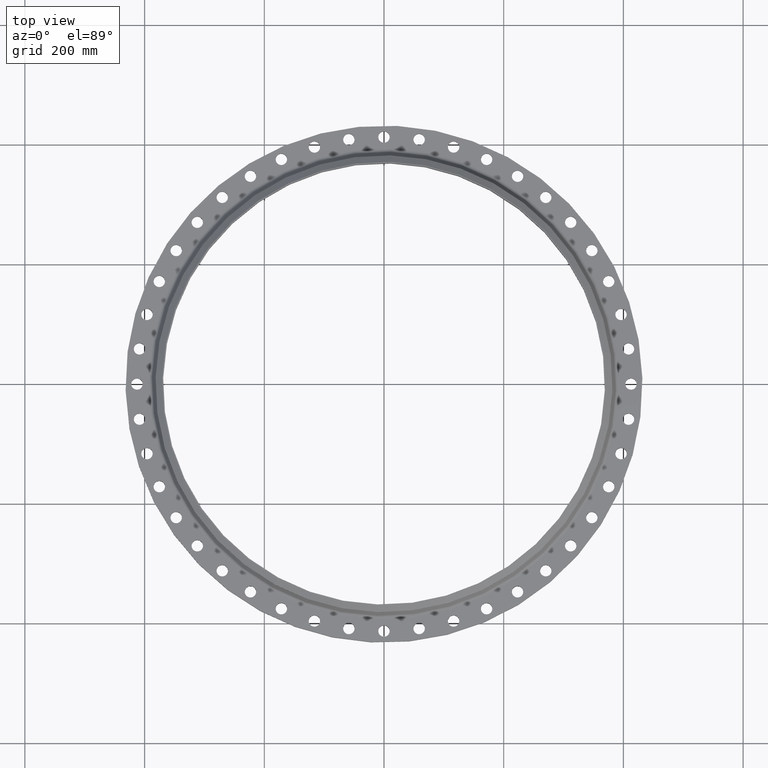
[diagram: clean part render]
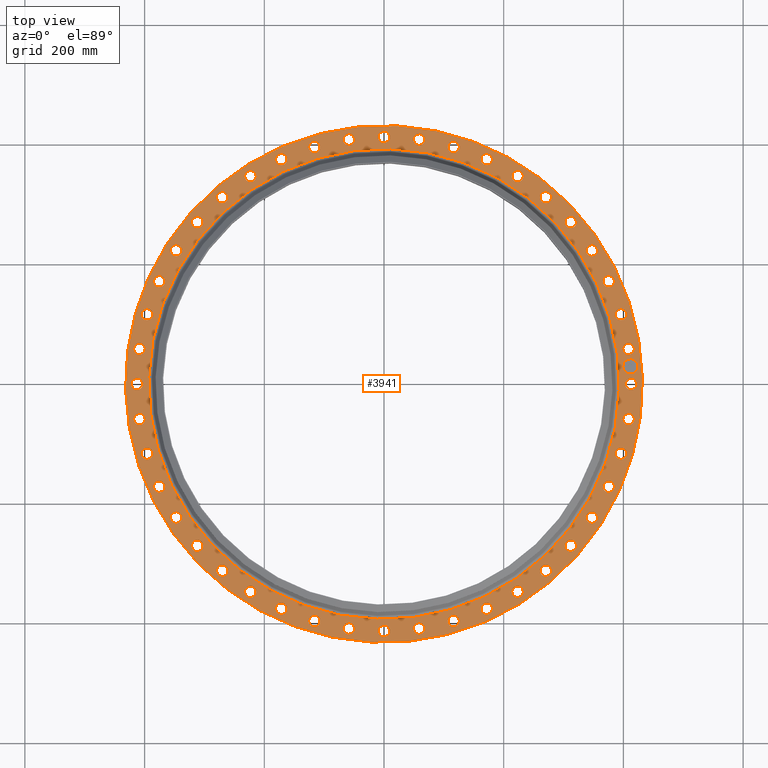
[diagram: same view with one face highlighted and labeled with its STEP entity id]
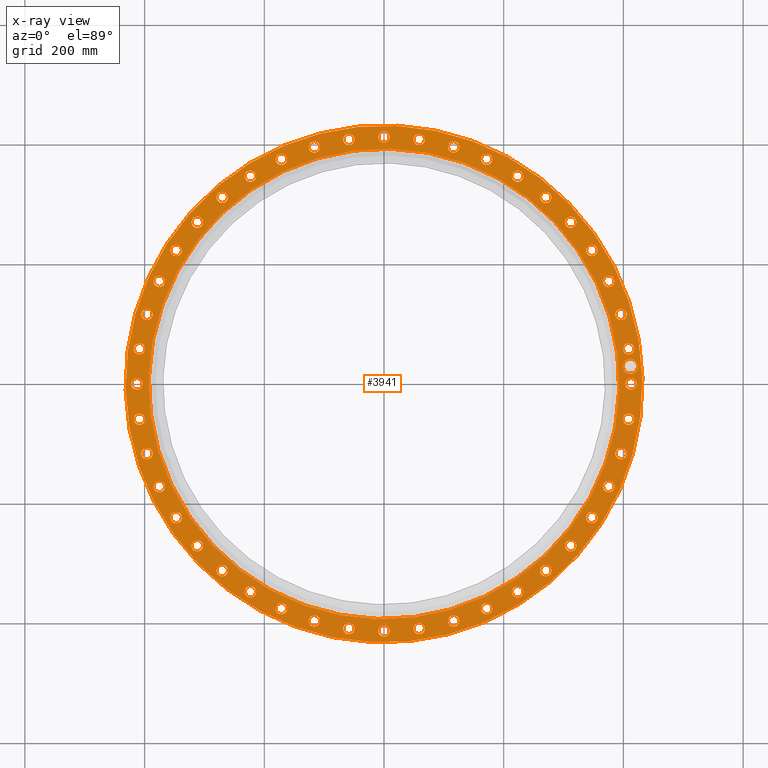
[diagram: x-ray of the same camera — body ghosted, the highlighted face saturated]
A machine part, top view. The second image highlights one B-rep face of the part: STEP entity #3941.
The next image is the same camera in x-ray: the body ghosted, the highlighted face saturated — about 0% of this face is hidden behind the body in this view.
In plain terms, the highlighted planar face has unit normal (0, 0, -1).
Its self-contained STEP definition (entity closure, byte-faithful):
#65=AXIS2_PLACEMENT_3D('Circle Axis2P3D',#63,#64,$) ;
#89=AXIS2_PLACEMENT_3D('Circle Axis2P3D',#87,#88,$) ;
#123=AXIS2_PLACEMENT_3D('Circle Axis2P3D',#121,#122,$) ;
#147=AXIS2_PLACEMENT_3D('Circle Axis2P3D',#145,#146,$) ;
#164=AXIS2_PLACEMENT_3D('Circle Axis2P3D',#162,#163,$) ;
#199=AXIS2_PLACEMENT_3D('Circle Axis2P3D',#197,#198,$) ;
#1863=AXIS2_PLACEMENT_3D('Circle Axis2P3D',#1861,#1862,$) ;
#1875=AXIS2_PLACEMENT_3D('Circle Axis2P3D',#1873,#1874,$) ;
#1907=AXIS2_PLACEMENT_3D('Circle Axis2P3D',#1905,#1906,$) ;
#1919=AXIS2_PLACEMENT_3D('Circle Axis2P3D',#1917,#1918,$) ;
#1951=AXIS2_PLACEMENT_3D('Circle Axis2P3D',#1949,#1950,$) ;
#1963=AXIS2_PLACEMENT_3D('Circle Axis2P3D',#1961,#1962,$) ;
#1995=AXIS2_PLACEMENT_3D('Circle Axis2P3D',#1993,#1994,$) ;
#2007=AXIS2_PLACEMENT_3D('Circle Axis2P3D',#2005,#2006,$) ;
#2039=AXIS2_PLACEMENT_3D('Circle Axis2P3D',#2037,#2038,$) ;
#2051=AXIS2_PLACEMENT_3D('Circle Axis2P3D',#2049,#2050,$) ;
#2083=AXIS2_PLACEMENT_3D('Circle Axis2P3D',#2081,#2082,$) ;
#2095=AXIS2_PLACEMENT_3D('Circle Axis2P3D',#2093,#2094,$) ;
#2127=AXIS2_PLACEMENT_3D('Circle Axis2P3D',#2125,#2126,$) ;
#2139=AXIS2_PLACEMENT_3D('Circle Axis2P3D',#2137,#2138,$) ;
#2171=AXIS2_PLACEMENT_3D('Circle Axis2P3D',#2169,#2170,$) ;
#2183=AXIS2_PLACEMENT_3D('Circle Axis2P3D',#2181,#2182,$) ;
#2215=AXIS2_PLACEMENT_3D('Circle Axis2P3D',#2213,#2214,$) ;
#2227=AXIS2_PLACEMENT_3D('Circle Axis2P3D',#2225,#2226,$) ;
#2259=AXIS2_PLACEMENT_3D('Circle Axis2P3D',#2257,#2258,$) ;
#2271=AXIS2_PLACEMENT_3D('Circle Axis2P3D',#2269,#2270,$) ;
#2303=AXIS2_PLACEMENT_3D('Circle Axis2P3D',#2301,#2302,$) ;
#2315=AXIS2_PLACEMENT_3D('Circle Axis2P3D',#2313,#2314,$) ;
#2347=AXIS2_PLACEMENT_3D('Circle Axis2P3D',#2345,#2346,$) ;
#2359=AXIS2_PLACEMENT_3D('Circle Axis2P3D',#2357,#2358,$) ;
#2391=AXIS2_PLACEMENT_3D('Circle Axis2P3D',#2389,#2390,$) ;
#2403=AXIS2_PLACEMENT_3D('Circle Axis2P3D',#2401,#2402,$) ;
#2435=AXIS2_PLACEMENT_3D('Circle Axis2P3D',#2433,#2434,$) ;
#2447=AXIS2_PLACEMENT_3D('Circle Axis2P3D',#2445,#2446,$) ;
#2479=AXIS2_PLACEMENT_3D('Circle Axis2P3D',#2477,#2478,$) ;
#2491=AXIS2_PLACEMENT_3D('Circle Axis2P3D',#2489,#2490,$) ;
#2523=AXIS2_PLACEMENT_3D('Circle Axis2P3D',#2521,#2522,$) ;
#2535=AXIS2_PLACEMENT_3D('Circle Axis2P3D',#2533,#2534,$) ;
#2567=AXIS2_PLACEMENT_3D('Circle Axis2P3D',#2565,#2566,$) ;
#2579=AXIS2_PLACEMENT_3D('Circle Axis2P3D',#2577,#2578,$) ;
#2611=AXIS2_PLACEMENT_3D('Circle Axis2P3D',#2609,#2610,$) ;
#2623=AXIS2_PLACEMENT_3D('Circle Axis2P3D',#2621,#2622,$) ;
#2655=AXIS2_PLACEMENT_3D('Circle Axis2P3D',#2653,#2654,$) ;
#2667=AXIS2_PLACEMENT_3D('Circle Axis2P3D',#2665,#2666,$) ;
#2699=AXIS2_PLACEMENT_3D('Circle Axis2P3D',#2697,#2698,$) ;
#2711=AXIS2_PLACEMENT_3D('Circle Axis2P3D',#2709,#2710,$) ;
#2743=AXIS2_PLACEMENT_3D('Circle Axis2P3D',#2741,#2742,$) ;
#2755=AXIS2_PLACEMENT_3D('Circle Axis2P3D',#2753,#2754,$) ;
#2787=AXIS2_PLACEMENT_3D('Circle Axis2P3D',#2785,#2786,$) ;
#2799=AXIS2_PLACEMENT_3D('Circle Axis2P3D',#2797,#2798,$) ;
#2831=AXIS2_PLACEMENT_3D('Circle Axis2P3D',#2829,#2830,$) ;
#2843=AXIS2_PLACEMENT_3D('Circle Axis2P3D',#2841,#2842,$) ;
#2875=AXIS2_PLACEMENT_3D('Circle Axis2P3D',#2873,#2874,$) ;
#2887=AXIS2_PLACEMENT_3D('Circle Axis2P3D',#2885,#2886,$) ;
#2919=AXIS2_PLACEMENT_3D('Circle Axis2P3D',#2917,#2918,$) ;
#2931=AXIS2_PLACEMENT_3D('Circle Axis2P3D',#2929,#2930,$) ;
#2963=AXIS2_PLACEMENT_3D('Circle Axis2P3D',#2961,#2962,$) ;
#2975=AXIS2_PLACEMENT_3D('Circle Axis2P3D',#2973,#2974,$) ;
#3007=AXIS2_PLACEMENT_3D('Circle Axis2P3D',#3005,#3006,$) ;
#3019=AXIS2_PLACEMENT_3D('Circle Axis2P3D',#3017,#3018,$) ;
#3051=AXIS2_PLACEMENT_3D('Circle Axis2P3D',#3049,#3050,$) ;
#3063=AXIS2_PLACEMENT_3D('Circle Axis2P3D',#3061,#3062,$) ;
#3095=AXIS2_PLACEMENT_3D('Circle Axis2P3D',#3093,#3094,$) ;
#3107=AXIS2_PLACEMENT_3D('Circle Axis2P3D',#3105,#3106,$) ;
#3139=AXIS2_PLACEMENT_3D('Circle Axis2P3D',#3137,#3138,$) ;
#3151=AXIS2_PLACEMENT_3D('Circle Axis2P3D',#3149,#3150,$) ;
#3183=AXIS2_PLACEMENT_3D('Circle Axis2P3D',#3181,#3182,$) ;
#3195=AXIS2_PLACEMENT_3D('Circle Axis2P3D',#3193,#3194,$) ;
#3227=AXIS2_PLACEMENT_3D('Circle Axis2P3D',#3225,#3226,$) ;
#3239=AXIS2_PLACEMENT_3D('Circle Axis2P3D',#3237,#3238,$) ;
#3271=AXIS2_PLACEMENT_3D('Circle Axis2P3D',#3269,#3270,$) ;
#3283=AXIS2_PLACEMENT_3D('Circle Axis2P3D',#3281,#3282,$) ;
#3315=AXIS2_PLACEMENT_3D('Circle Axis2P3D',#3313,#3314,$) ;
#3327=AXIS2_PLACEMENT_3D('Circle Axis2P3D',#3325,#3326,$) ;
#3359=AXIS2_PLACEMENT_3D('Circle Axis2P3D',#3357,#3358,$) ;
#3371=AXIS2_PLACEMENT_3D('Circle Axis2P3D',#3369,#3370,$) ;
#3403=AXIS2_PLACEMENT_3D('Circle Axis2P3D',#3401,#3402,$) ;
#3415=AXIS2_PLACEMENT_3D('Circle Axis2P3D',#3413,#3414,$) ;
#3447=AXIS2_PLACEMENT_3D('Circle Axis2P3D',#3445,#3446,$) ;
#3459=AXIS2_PLACEMENT_3D('Circle Axis2P3D',#3457,#3458,$) ;
#3491=AXIS2_PLACEMENT_3D('Circle Axis2P3D',#3489,#3490,$) ;
#3503=AXIS2_PLACEMENT_3D('Circle Axis2P3D',#3501,#3502,$) ;
#3535=AXIS2_PLACEMENT_3D('Circle Axis2P3D',#3533,#3534,$) ;
#3547=AXIS2_PLACEMENT_3D('Circle Axis2P3D',#3545,#3546,$) ;
#3579=AXIS2_PLACEMENT_3D('Circle Axis2P3D',#3577,#3578,$) ;
#3591=AXIS2_PLACEMENT_3D('Circle Axis2P3D',#3589,#3590,$) ;
#3623=AXIS2_PLACEMENT_3D('Circle Axis2P3D',#3621,#3622,$) ;
#3635=AXIS2_PLACEMENT_3D('Circle Axis2P3D',#3633,#3634,$) ;
#3667=AXIS2_PLACEMENT_3D('Circle Axis2P3D',#3665,#3666,$) ;
#3679=AXIS2_PLACEMENT_3D('Circle Axis2P3D',#3677,#3678,$) ;
#3711=AXIS2_PLACEMENT_3D('Circle Axis2P3D',#3709,#3710,$) ;
#3723=AXIS2_PLACEMENT_3D('Circle Axis2P3D',#3721,#3722,$) ;
#3737=AXIS2_PLACEMENT_3D('Plane Axis2P3D',#3734,#3735,#3736) ;
#3925=AXIS2_PLACEMENT_3D('Circle Axis2P3D',#3923,#3924,$) ;
#3934=AXIS2_PLACEMENT_3D('Circle Axis2P3D',#3932,#3933,$) ;
#46=CARTESIAN_POINT('Vertex',(15.9209065394,0.179784576977,1.25000000001)) ;
#60=CARTESIAN_POINT('Vertex',(16.5790934608,-0.179784576977,1.25000000001)) ;
#63=CARTESIAN_POINT('Axis2P3D Location',(16.2500000001,0.,1.25000000001)) ;
#87=CARTESIAN_POINT('Axis2P3D Location',(16.2500000001,0.,1.25000000001)) ;
#118=CARTESIAN_POINT('Vertex',(-8.1502341563,-14.9189035522,1.25000000001)) ;
#121=CARTESIAN_POINT('Axis2P3D Location',(0.,0.,1.25000000001)) ;
#125=CARTESIAN_POINT('Vertex',(8.1502341563,14.9189035522,1.25000000001)) ;
#145=CARTESIAN_POINT('Axis2P3D Location',(0.,0.,1.25000000001)) ;
#162=CARTESIAN_POINT('Axis2P3D Location',(0.,0.,1.25000000001)) ;
#166=CARTESIAN_POINT('Vertex',(7.42018520107,13.5825579034,1.25000000001)) ;
#168=CARTESIAN_POINT('Vertex',(-7.42018520107,-13.5825579034,1.25000000001)) ;
#197=CARTESIAN_POINT('Axis2P3D Location',(0.,0.,1.25000000001)) ;
#1851=CARTESIAN_POINT('Vertex',(-15.9209065394,-0.179784576977,1.25000000001)) ;
#1858=CARTESIAN_POINT('Vertex',(-16.5790934608,0.179784576977,1.25000000001)) ;
#1861=CARTESIAN_POINT('Axis2P3D Location',(-16.2500000001,-1.99005104862E-015,1.25000000001)) ;
#1873=CARTESIAN_POINT('Axis2P3D Location',(-16.2500000001,-1.99005104862E-015,1.25000000001)) ;
#1895=CARTESIAN_POINT('Vertex',(15.7332686538,2.44373586852,1.25000000001)) ;
#1902=CARTESIAN_POINT('Vertex',(16.4359282074,2.18149637538,1.25000000001)) ;
#1905=CARTESIAN_POINT('Axis2P3D Location',(16.0845984306,2.31261612195,1.25000000001)) ;
#1917=CARTESIAN_POINT('Axis2P3D Location',(16.0845984306,2.31261612195,1.25000000001)) ;
#1939=CARTESIAN_POINT('Vertex',(-15.7332686538,-2.44373586852,1.25000000001)) ;
#1946=CARTESIAN_POINT('Vertex',(-16.4359282074,-2.18149637538,1.25000000001)) ;
#1949=CARTESIAN_POINT('Axis2P3D Location',(-16.0845984306,-2.31261612195,1.25000000001)) ;
#1961=CARTESIAN_POINT('Axis2P3D Location',(-16.0845984306,-2.31261612195,1.25000000001)) ;
#1983=CARTESIAN_POINT('Vertex',(15.7844406798,-2.0878266101,1.25000000001)) ;
#1990=CARTESIAN_POINT('Vertex',(16.3847561814,-2.5374056338,1.25000000001)) ;
#1993=CARTESIAN_POINT('Axis2P3D Location',(16.0845984306,-2.31261612195,1.25000000001)) ;
#2005=CARTESIAN_POINT('Axis2P3D Location',(16.0845984306,-2.31261612195,1.25000000001)) ;
#2027=CARTESIAN_POINT('Vertex',(-15.3266491266,4.31293566819,1.25000000001)) ;
#2034=CARTESIAN_POINT('Vertex',(-15.856872516,4.84337242919,1.25000000001)) ;
#2037=CARTESIAN_POINT('Axis2P3D Location',(-15.5917608213,4.57815404869,1.25000000001)) ;
#2049=CARTESIAN_POINT('Axis2P3D Location',(-15.5917608213,4.57815404869,1.25000000001)) ;
#2071=CARTESIAN_POINT('Vertex',(-2.44373586852,15.7332686538,1.25000000001)) ;
#2078=CARTESIAN_POINT('Vertex',(-2.18149637538,16.4359282074,1.25000000001)) ;
#2081=CARTESIAN_POINT('Axis2P3D Location',(-2.31261612195,16.0845984306,1.25000000001)) ;
#2093=CARTESIAN_POINT('Axis2P3D Location',(-2.31261612195,16.0845984306,1.25000000001)) ;
#2115=CARTESIAN_POINT('Vertex',(13.2963199914,8.7587363366,1.25000000001)) ;
#2122=CARTESIAN_POINT('Vertex',(14.0444198257,8.81209023078,1.25000000001)) ;
#2125=CARTESIAN_POINT('Axis2P3D Location',(13.6703699086,8.78541328369,1.25000000001)) ;
#2137=CARTESIAN_POINT('Axis2P3D Location',(13.6703699086,8.78541328369,1.25000000001)) ;
#2159=CARTESIAN_POINT('Vertex',(14.5568511956,-6.45024579356,1.25000000001)) ;
#2166=CARTESIAN_POINT('Vertex',(15.0061886535,-7.05074212906,1.25000000001)) ;
#2169=CARTESIAN_POINT('Axis2P3D Location',(14.7815199246,-6.75049396131,1.25000000001)) ;
#2181=CARTESIAN_POINT('Axis2P3D Location',(14.7815199246,-6.75049396131,1.25000000001)) ;
#2203=CARTESIAN_POINT('Vertex',(-10.561848659,11.9144844804,1.25000000001)) ;
#2210=CARTESIAN_POINT('Vertex',(-10.7211251943,12.6473766862,1.25000000001)) ;
#2213=CARTESIAN_POINT('Axis2P3D Location',(-10.6414869267,12.2809305833,1.25000000001)) ;
#2225=CARTESIAN_POINT('Axis2P3D Location',(-10.6414869267,12.2809305833,1.25000000001)) ;
#2247=CARTESIAN_POINT('Vertex',(13.4907177528,-8.45624751554,1.25000000001)) ;
#2254=CARTESIAN_POINT('Vertex',(13.8500220644,-9.11457905184,1.25000000001)) ;
#2257=CARTESIAN_POINT('Axis2P3D Location',(13.6703699086,-8.78541328369,1.25000000001)) ;
#2269=CARTESIAN_POINT('Axis2P3D Location',(13.6703699086,-8.78541328369,1.25000000001)) ;
#2291=CARTESIAN_POINT('Vertex',(6.45024579356,14.5568511956,1.25000000001)) ;
#2298=CARTESIAN_POINT('Vertex',(7.05074212906,15.0061886535,1.25000000001)) ;
#2301=CARTESIAN_POINT('Axis2P3D Location',(6.75049396131,14.7815199246,1.25000000001)) ;
#2313=CARTESIAN_POINT('Axis2P3D Location',(6.75049396131,14.7815199246,1.25000000001)) ;
#2335=CARTESIAN_POINT('Vertex',(12.1499522005,-10.2901044239,1.25000000001)) ;
#2342=CARTESIAN_POINT('Vertex',(12.4119089661,-10.9928694294,1.25000000001)) ;
#2345=CARTESIAN_POINT('Axis2P3D Location',(12.2809305833,-10.6414869267,1.25000000001)) ;
#2357=CARTESIAN_POINT('Axis2P3D Location',(12.2809305833,-10.6414869267,1.25000000001)) ;
#2379=CARTESIAN_POINT('Vertex',(14.4074807709,6.77732140054,1.25000000001)) ;
#2386=CARTESIAN_POINT('Vertex',(15.1555590783,6.72366652208,1.25000000001)) ;
#2389=CARTESIAN_POINT('Axis2P3D Location',(14.7815199246,6.75049396131,1.25000000001)) ;
#2401=CARTESIAN_POINT('Axis2P3D Location',(14.7815199246,6.75049396131,1.25000000001)) ;
#2423=CARTESIAN_POINT('Vertex',(10.561848659,-11.9144844804,1.25000000001)) ;
#2430=CARTESIAN_POINT('Vertex',(10.7211251943,-12.6473766862,1.25000000001)) ;
#2433=CARTESIAN_POINT('Axis2P3D Location',(10.6414869267,-12.2809305833,1.25000000001)) ;
#2445=CARTESIAN_POINT('Axis2P3D Location',(10.6414869267,-12.2809305833,1.25000000001)) ;
#2467=CARTESIAN_POINT('Vertex',(-13.4907177528,8.45624751554,1.25000000001)) ;
#2474=CARTESIAN_POINT('Vertex',(-13.8500220644,9.11457905184,1.25000000001)) ;
#2477=CARTESIAN_POINT('Axis2P3D Location',(-13.6703699086,8.78541328369,1.25000000001)) ;
#2489=CARTESIAN_POINT('Axis2P3D Location',(-13.6703699086,8.78541328369,1.25000000001)) ;
#2511=CARTESIAN_POINT('Vertex',(8.7587363366,-13.2963199914,1.25000000001)) ;
#2518=CARTESIAN_POINT('Vertex',(8.81209023078,-14.0444198257,1.25000000001)) ;
#2521=CARTESIAN_POINT('Axis2P3D Location',(8.78541328369,-13.6703699086,1.25000000001)) ;
#2533=CARTESIAN_POINT('Axis2P3D Location',(8.78541328369,-13.6703699086,1.25000000001)) ;
#2555=CARTESIAN_POINT('Vertex',(-6.77732140054,14.4074807709,1.25000000001)) ;
#2562=CARTESIAN_POINT('Vertex',(-6.72366652208,15.1555590783,1.25000000001)) ;
#2565=CARTESIAN_POINT('Axis2P3D Location',(-6.75049396131,14.7815199246,1.25000000001)) ;
#2577=CARTESIAN_POINT('Axis2P3D Location',(-6.75049396131,14.7815199246,1.25000000001)) ;
#2599=CARTESIAN_POINT('Vertex',(6.77732140054,-14.4074807709,1.25000000001)) ;
#2606=CARTESIAN_POINT('Vertex',(6.72366652208,-15.1555590783,1.25000000001)) ;
#2609=CARTESIAN_POINT('Axis2P3D Location',(6.75049396131,-14.7815199246,1.25000000001)) ;
#2621=CARTESIAN_POINT('Axis2P3D Location',(6.75049396131,-14.7815199246,1.25000000001)) ;
#2643=CARTESIAN_POINT('Vertex',(2.0878266101,15.7844406798,1.25000000001)) ;
#2650=CARTESIAN_POINT('Vertex',(2.5374056338,16.3847561814,1.25000000001)) ;
#2653=CARTESIAN_POINT('Axis2P3D Location',(2.31261612195,16.0845984306,1.25000000001)) ;
#2665=CARTESIAN_POINT('Axis2P3D Location',(2.31261612195,16.0845984306,1.25000000001)) ;
#2687=CARTESIAN_POINT('Vertex',(4.65793974494,-15.2253467895,1.25000000001)) ;
#2694=CARTESIAN_POINT('Vertex',(4.49836835244,-15.9581748531,1.25000000001)) ;
#2697=CARTESIAN_POINT('Axis2P3D Location',(4.57815404869,-15.5917608213,1.25000000001)) ;
#2709=CARTESIAN_POINT('Axis2P3D Location',(4.57815404869,-15.5917608213,1.25000000001)) ;
#2731=CARTESIAN_POINT('Vertex',(10.2901044239,12.1499522005,1.25000000001)) ;
#2738=CARTESIAN_POINT('Vertex',(10.9928694294,12.4119089661,1.25000000001)) ;
#2741=CARTESIAN_POINT('Axis2P3D Location',(10.6414869267,12.2809305833,1.25000000001)) ;
#2753=CARTESIAN_POINT('Axis2P3D Location',(10.6414869267,12.2809305833,1.25000000001)) ;
#2775=CARTESIAN_POINT('Vertex',(2.44373586852,-15.7332686538,1.25000000001)) ;
#2782=CARTESIAN_POINT('Vertex',(2.18149637538,-16.4359282074,1.25000000001)) ;
#2785=CARTESIAN_POINT('Axis2P3D Location',(2.31261612195,-16.0845984306,1.25000000001)) ;
#2797=CARTESIAN_POINT('Axis2P3D Location',(2.31261612195,-16.0845984306,1.25000000001)) ;
#2819=CARTESIAN_POINT('Vertex',(15.2253467895,4.65793974494,1.25000000001)) ;
#2826=CARTESIAN_POINT('Vertex',(15.9581748531,4.49836835244,1.25000000001)) ;
#2829=CARTESIAN_POINT('Axis2P3D Location',(15.5917608213,4.57815404869,1.25000000001)) ;
#2841=CARTESIAN_POINT('Axis2P3D Location',(15.5917608213,4.57815404869,1.25000000001)) ;
#2863=CARTESIAN_POINT('Vertex',(0.179784576977,-15.9209065394,1.25000000001)) ;
#2870=CARTESIAN_POINT('Vertex',(-0.179784576977,-16.5790934608,1.25000000001)) ;
#2873=CARTESIAN_POINT('Axis2P3D Location',(9.95025524311E-016,-16.2500000001,1.25000000001)) ;
#2885=CARTESIAN_POINT('Axis2P3D Location',(9.95025524311E-016,-16.2500000001,1.25000000001)) ;
#2907=CARTESIAN_POINT('Vertex',(-15.7844406798,2.0878266101,1.25000000001)) ;
#2914=CARTESIAN_POINT('Vertex',(-16.3847561814,2.5374056338,1.25000000001)) ;
#2917=CARTESIAN_POINT('Axis2P3D Location',(-16.0845984306,2.31261612195,1.25000000001)) ;
#2929=CARTESIAN_POINT('Axis2P3D Location',(-16.0845984306,2.31261612195,1.25000000001)) ;
#2951=CARTESIAN_POINT('Vertex',(-2.0878266101,-15.7844406798,1.25000000001)) ;
#2958=CARTESIAN_POINT('Vertex',(-2.5374056338,-16.3847561814,1.25000000001)) ;
#2961=CARTESIAN_POINT('Axis2P3D Location',(-2.31261612195,-16.0845984306,1.25000000001)) ;
#2973=CARTESIAN_POINT('Axis2P3D Location',(-2.31261612195,-16.0845984306,1.25000000001)) ;
#2995=CARTESIAN_POINT('Vertex',(-14.5568511956,6.45024579356,1.25000000001)) ;
#3002=CARTESIAN_POINT('Vertex',(-15.0061886535,7.05074212906,1.25000000001)) ;
#3005=CARTESIAN_POINT('Axis2P3D Location',(-14.7815199246,6.75049396131,1.25000000001)) ;
#3017=CARTESIAN_POINT('Axis2P3D Location',(-14.7815199246,6.75049396131,1.25000000001)) ;
#3039=CARTESIAN_POINT('Vertex',(-4.31293566819,-15.3266491266,1.25000000001)) ;
#3046=CARTESIAN_POINT('Vertex',(-4.84337242919,-15.856872516,1.25000000001)) ;
#3049=CARTESIAN_POINT('Axis2P3D Location',(-4.57815404869,-15.5917608213,1.25000000001)) ;
#3061=CARTESIAN_POINT('Axis2P3D Location',(-4.57815404869,-15.5917608213,1.25000000001)) ;
#3083=CARTESIAN_POINT('Vertex',(-12.1499522005,10.2901044239,1.25000000001)) ;
#3090=CARTESIAN_POINT('Vertex',(-12.4119089661,10.9928694294,1.25000000001)) ;
#3093=CARTESIAN_POINT('Axis2P3D Location',(-12.2809305833,10.6414869267,1.25000000001)) ;
#3105=CARTESIAN_POINT('Axis2P3D Location',(-12.2809305833,10.6414869267,1.25000000001)) ;
#3127=CARTESIAN_POINT('Vertex',(-6.45024579356,-14.5568511956,1.25000000001)) ;
#3134=CARTESIAN_POINT('Vertex',(-7.05074212906,-15.0061886535,1.25000000001)) ;
#3137=CARTESIAN_POINT('Axis2P3D Location',(-6.75049396131,-14.7815199246,1.25000000001)) ;
#3149=CARTESIAN_POINT('Axis2P3D Location',(-6.75049396131,-14.7815199246,1.25000000001)) ;
#3171=CARTESIAN_POINT('Vertex',(-8.7587363366,13.2963199914,1.25000000001)) ;
#3178=CARTESIAN_POINT('Vertex',(-8.81209023078,14.0444198257,1.25000000001)) ;
#3181=CARTESIAN_POINT('Axis2P3D Location',(-8.78541328369,13.6703699086,1.25000000001)) ;
#3193=CARTESIAN_POINT('Axis2P3D Location',(-8.78541328369,13.6703699086,1.25000000001)) ;
#3215=CARTESIAN_POINT('Vertex',(-8.45624751554,-13.4907177528,1.25000000001)) ;
#3222=CARTESIAN_POINT('Vertex',(-9.11457905184,-13.8500220644,1.25000000001)) ;
#3225=CARTESIAN_POINT('Axis2P3D Location',(-8.78541328369,-13.6703699086,1.25000000001)) ;
#3237=CARTESIAN_POINT('Axis2P3D Location',(-8.78541328369,-13.6703699086,1.25000000001)) ;
#3259=CARTESIAN_POINT('Vertex',(-4.65793974494,15.2253467895,1.25000000001)) ;
#3266=CARTESIAN_POINT('Vertex',(-4.49836835244,15.9581748531,1.25000000001)) ;
#3269=CARTESIAN_POINT('Axis2P3D Location',(-4.57815404869,15.5917608213,1.25000000001)) ;
#3281=CARTESIAN_POINT('Axis2P3D Location',(-4.57815404869,15.5917608213,1.25000000001)) ;
#3303=CARTESIAN_POINT('Vertex',(-10.2901044239,-12.1499522005,1.25000000001)) ;
#3310=CARTESIAN_POINT('Vertex',(-10.9928694294,-12.4119089661,1.25000000001)) ;
#3313=CARTESIAN_POINT('Axis2P3D Location',(-10.6414869267,-12.2809305833,1.25000000001)) ;
#3325=CARTESIAN_POINT('Axis2P3D Location',(-10.6414869267,-12.2809305833,1.25000000001)) ;
#3347=CARTESIAN_POINT('Vertex',(-0.179784576977,15.9209065394,1.25000000001)) ;
#3354=CARTESIAN_POINT('Vertex',(0.179784576977,16.5790934608,1.25000000001)) ;
#3357=CARTESIAN_POINT('Axis2P3D Location',(-2.98507657293E-015,16.2500000001,1.25000000001)) ;
#3369=CARTESIAN_POINT('Axis2P3D Location',(-2.98507657293E-015,16.2500000001,1.25000000001)) ;
#3391=CARTESIAN_POINT('Vertex',(-11.9144844804,-10.561848659,1.25000000001)) ;
#3398=CARTESIAN_POINT('Vertex',(-12.6473766862,-10.7211251943,1.25000000001)) ;
#3401=CARTESIAN_POINT('Axis2P3D Location',(-12.2809305833,-10.6414869267,1.25000000001)) ;
#3413=CARTESIAN_POINT('Axis2P3D Location',(-12.2809305833,-10.6414869267,1.25000000001)) ;
#3435=CARTESIAN_POINT('Vertex',(4.31293566819,15.3266491266,1.25000000001)) ;
#3442=CARTESIAN_POINT('Vertex',(4.84337242919,15.856872516,1.25000000001)) ;
#3445=CARTESIAN_POINT('Axis2P3D Location',(4.57815404869,15.5917608213,1.25000000001)) ;
#3457=CARTESIAN_POINT('Axis2P3D Location',(4.57815404869,15.5917608213,1.25000000001)) ;
#3479=CARTESIAN_POINT('Vertex',(-13.2963199914,-8.7587363366,1.25000000001)) ;
#3486=CARTESIAN_POINT('Vertex',(-14.0444198257,-8.81209023078,1.25000000001)) ;
#3489=CARTESIAN_POINT('Axis2P3D Location',(-13.6703699086,-8.78541328369,1.25000000001)) ;
#3501=CARTESIAN_POINT('Axis2P3D Location',(-13.6703699086,-8.78541328369,1.25000000001)) ;
#3523=CARTESIAN_POINT('Vertex',(8.45624751554,13.4907177528,1.25000000001)) ;
#3530=CARTESIAN_POINT('Vertex',(9.11457905184,13.8500220644,1.25000000001)) ;
#3533=CARTESIAN_POINT('Axis2P3D Location',(8.78541328369,13.6703699086,1.25000000001)) ;
#3545=CARTESIAN_POINT('Axis2P3D Location',(8.78541328369,13.6703699086,1.25000000001)) ;
#3567=CARTESIAN_POINT('Vertex',(-14.4074807709,-6.77732140054,1.25000000001)) ;
#3574=CARTESIAN_POINT('Vertex',(-15.1555590783,-6.72366652208,1.25000000001)) ;
#3577=CARTESIAN_POINT('Axis2P3D Location',(-14.7815199246,-6.75049396131,1.25000000001)) ;
#3589=CARTESIAN_POINT('Axis2P3D Location',(-14.7815199246,-6.75049396131,1.25000000001)) ;
#3611=CARTESIAN_POINT('Vertex',(11.9144844804,10.561848659,1.25000000001)) ;
#3618=CARTESIAN_POINT('Vertex',(12.6473766862,10.7211251943,1.25000000001)) ;
#3621=CARTESIAN_POINT('Axis2P3D Location',(12.2809305833,10.6414869267,1.25000000001)) ;
#3633=CARTESIAN_POINT('Axis2P3D Location',(12.2809305833,10.6414869267,1.25000000001)) ;
#3655=CARTESIAN_POINT('Vertex',(-15.2253467895,-4.65793974494,1.25000000001)) ;
#3662=CARTESIAN_POINT('Vertex',(-15.9581748531,-4.49836835244,1.25000000001)) ;
#3665=CARTESIAN_POINT('Axis2P3D Location',(-15.5917608213,-4.57815404869,1.25000000001)) ;
#3677=CARTESIAN_POINT('Axis2P3D Location',(-15.5917608213,-4.57815404869,1.25000000001)) ;
#3699=CARTESIAN_POINT('Vertex',(15.3266491266,-4.31293566819,1.25000000001)) ;
#3706=CARTESIAN_POINT('Vertex',(15.856872516,-4.84337242919,1.25000000001)) ;
#3709=CARTESIAN_POINT('Axis2P3D Location',(15.5917608213,-4.57815404869,1.25000000001)) ;
#3721=CARTESIAN_POINT('Axis2P3D Location',(15.5917608213,-4.57815404869,1.25000000001)) ;
#3734=CARTESIAN_POINT('Axis2P3D Location',(0.,17.0000000001,1.25000000001)) ;
#3923=CARTESIAN_POINT('Axis2P3D Location',(16.2085968625,1.15926172699,1.25000000001)) ;
#3927=CARTESIAN_POINT('Vertex',(16.1729273526,1.65798664122,1.25000000001)) ;
#3929=CARTESIAN_POINT('Vertex',(16.2442663723,0.660536812768,1.25000000001)) ;
#3932=CARTESIAN_POINT('Axis2P3D Location',(16.2085968625,1.15926172699,1.25000000001)) ;
#64=DIRECTION('Axis2P3D Direction',(0.,-0.,-0.0393700787402)) ;
#88=DIRECTION('Axis2P3D Direction',(0.,-0.,-0.0393700787402)) ;
#122=DIRECTION('Axis2P3D Direction',(0.,0.,-0.0393700787402)) ;
#146=DIRECTION('Axis2P3D Direction',(0.,0.,-0.0393700787402)) ;
#163=DIRECTION('Axis2P3D Direction',(0.,0.,-0.0393700787402)) ;
#198=DIRECTION('Axis2P3D Direction',(0.,0.,-0.0393700787402)) ;
#1862=DIRECTION('Axis2P3D Direction',(-0.,0.,-0.0393700787402)) ;
#1874=DIRECTION('Axis2P3D Direction',(-0.,0.,-0.0393700787402)) ;
#1906=DIRECTION('Axis2P3D Direction',(0.,0.,-0.0393700787402)) ;
#1918=DIRECTION('Axis2P3D Direction',(0.,0.,-0.0393700787402)) ;
#1950=DIRECTION('Axis2P3D Direction',(-0.,0.,-0.0393700787402)) ;
#1962=DIRECTION('Axis2P3D Direction',(-0.,0.,-0.0393700787402)) ;
#1994=DIRECTION('Axis2P3D Direction',(0.,-0.,-0.0393700787402)) ;
#2006=DIRECTION('Axis2P3D Direction',(0.,-0.,-0.0393700787402)) ;
#2038=DIRECTION('Axis2P3D Direction',(0.,0.,-0.0393700787402)) ;
#2050=DIRECTION('Axis2P3D Direction',(0.,0.,-0.0393700787402)) ;
#2082=DIRECTION('Axis2P3D Direction',(0.,0.,-0.0393700787402)) ;
#2094=DIRECTION('Axis2P3D Direction',(0.,0.,-0.0393700787402)) ;
#2126=DIRECTION('Axis2P3D Direction',(0.,0.,-0.0393700787402)) ;
#2138=DIRECTION('Axis2P3D Direction',(0.,0.,-0.0393700787402)) ;
#2170=DIRECTION('Axis2P3D Direction',(0.,-0.,-0.0393700787402)) ;
#2182=DIRECTION('Axis2P3D Direction',(0.,-0.,-0.0393700787402)) ;
#2214=DIRECTION('Axis2P3D Direction',(0.,0.,-0.0393700787402)) ;
#2226=DIRECTION('Axis2P3D Direction',(0.,0.,-0.0393700787402)) ;
#2258=DIRECTION('Axis2P3D Direction',(0.,-0.,-0.0393700787402)) ;
#2270=DIRECTION('Axis2P3D Direction',(0.,-0.,-0.0393700787402)) ;
#2302=DIRECTION('Axis2P3D Direction',(0.,0.,-0.0393700787402)) ;
#2314=DIRECTION('Axis2P3D Direction',(0.,0.,-0.0393700787402)) ;
#2346=DIRECTION('Axis2P3D Direction',(0.,-0.,-0.0393700787402)) ;
#2358=DIRECTION('Axis2P3D Direction',(0.,-0.,-0.0393700787402)) ;
#2390=DIRECTION('Axis2P3D Direction',(0.,0.,-0.0393700787402)) ;
#2402=DIRECTION('Axis2P3D Direction',(0.,0.,-0.0393700787402)) ;
#2434=DIRECTION('Axis2P3D Direction',(0.,-0.,-0.0393700787402)) ;
#2446=DIRECTION('Axis2P3D Direction',(0.,-0.,-0.0393700787402)) ;
#2478=DIRECTION('Axis2P3D Direction',(0.,0.,-0.0393700787402)) ;
#2490=DIRECTION('Axis2P3D Direction',(0.,0.,-0.0393700787402)) ;
#2522=DIRECTION('Axis2P3D Direction',(0.,-0.,-0.0393700787402)) ;
#2534=DIRECTION('Axis2P3D Direction',(0.,-0.,-0.0393700787402)) ;
#2566=DIRECTION('Axis2P3D Direction',(0.,0.,-0.0393700787402)) ;
#2578=DIRECTION('Axis2P3D Direction',(0.,0.,-0.0393700787402)) ;
#2610=DIRECTION('Axis2P3D Direction',(0.,-0.,-0.0393700787402)) ;
#2622=DIRECTION('Axis2P3D Direction',(0.,-0.,-0.0393700787402)) ;
#2654=DIRECTION('Axis2P3D Direction',(0.,0.,-0.0393700787402)) ;
#2666=DIRECTION('Axis2P3D Direction',(0.,0.,-0.0393700787402)) ;
#2698=DIRECTION('Axis2P3D Direction',(0.,-0.,-0.0393700787402)) ;
#2710=DIRECTION('Axis2P3D Direction',(0.,-0.,-0.0393700787402)) ;
#2742=DIRECTION('Axis2P3D Direction',(0.,0.,-0.0393700787402)) ;
#2754=DIRECTION('Axis2P3D Direction',(0.,0.,-0.0393700787402)) ;
#2786=DIRECTION('Axis2P3D Direction',(0.,-0.,-0.0393700787402)) ;
#2798=DIRECTION('Axis2P3D Direction',(0.,-0.,-0.0393700787402)) ;
#2830=DIRECTION('Axis2P3D Direction',(0.,0.,-0.0393700787402)) ;
#2842=DIRECTION('Axis2P3D Direction',(0.,0.,-0.0393700787402)) ;
#2874=DIRECTION('Axis2P3D Direction',(0.,-0.,-0.0393700787402)) ;
#2886=DIRECTION('Axis2P3D Direction',(0.,-0.,-0.0393700787402)) ;
#2918=DIRECTION('Axis2P3D Direction',(0.,0.,-0.0393700787402)) ;
#2930=DIRECTION('Axis2P3D Direction',(0.,0.,-0.0393700787402)) ;
#2962=DIRECTION('Axis2P3D Direction',(-0.,0.,-0.0393700787402)) ;
#2974=DIRECTION('Axis2P3D Direction',(-0.,0.,-0.0393700787402)) ;
#3006=DIRECTION('Axis2P3D Direction',(0.,0.,-0.0393700787402)) ;
#3018=DIRECTION('Axis2P3D Direction',(0.,0.,-0.0393700787402)) ;
#3050=DIRECTION('Axis2P3D Direction',(-0.,0.,-0.0393700787402)) ;
#3062=DIRECTION('Axis2P3D Direction',(-0.,0.,-0.0393700787402)) ;
#3094=DIRECTION('Axis2P3D Direction',(0.,0.,-0.0393700787402)) ;
#3106=DIRECTION('Axis2P3D Direction',(0.,0.,-0.0393700787402)) ;
#3138=DIRECTION('Axis2P3D Direction',(-0.,0.,-0.0393700787402)) ;
#3150=DIRECTION('Axis2P3D Direction',(-0.,0.,-0.0393700787402)) ;
#3182=DIRECTION('Axis2P3D Direction',(0.,0.,-0.0393700787402)) ;
#3194=DIRECTION('Axis2P3D Direction',(0.,0.,-0.0393700787402)) ;
#3226=DIRECTION('Axis2P3D Direction',(-0.,0.,-0.0393700787402)) ;
#3238=DIRECTION('Axis2P3D Direction',(-0.,0.,-0.0393700787402)) ;
#3270=DIRECTION('Axis2P3D Direction',(0.,0.,-0.0393700787402)) ;
#3282=DIRECTION('Axis2P3D Direction',(0.,0.,-0.0393700787402)) ;
#3314=DIRECTION('Axis2P3D Direction',(-0.,0.,-0.0393700787402)) ;
#3326=DIRECTION('Axis2P3D Direction',(-0.,0.,-0.0393700787402)) ;
#3358=DIRECTION('Axis2P3D Direction',(0.,0.,-0.0393700787402)) ;
#3370=DIRECTION('Axis2P3D Direction',(0.,0.,-0.0393700787402)) ;
#3402=DIRECTION('Axis2P3D Direction',(-0.,0.,-0.0393700787402)) ;
#3414=DIRECTION('Axis2P3D Direction',(-0.,0.,-0.0393700787402)) ;
#3446=DIRECTION('Axis2P3D Direction',(0.,0.,-0.0393700787402)) ;
#3458=DIRECTION('Axis2P3D Direction',(0.,0.,-0.0393700787402)) ;
#3490=DIRECTION('Axis2P3D Direction',(-0.,0.,-0.0393700787402)) ;
#3502=DIRECTION('Axis2P3D Direction',(-0.,0.,-0.0393700787402)) ;
#3534=DIRECTION('Axis2P3D Direction',(0.,0.,-0.0393700787402)) ;
#3546=DIRECTION('Axis2P3D Direction',(0.,0.,-0.0393700787402)) ;
#3578=DIRECTION('Axis2P3D Direction',(-0.,0.,-0.0393700787402)) ;
#3590=DIRECTION('Axis2P3D Direction',(-0.,0.,-0.0393700787402)) ;
#3622=DIRECTION('Axis2P3D Direction',(0.,0.,-0.0393700787402)) ;
#3634=DIRECTION('Axis2P3D Direction',(0.,0.,-0.0393700787402)) ;
#3666=DIRECTION('Axis2P3D Direction',(-0.,0.,-0.0393700787402)) ;
#3678=DIRECTION('Axis2P3D Direction',(-0.,0.,-0.0393700787402)) ;
#3710=DIRECTION('Axis2P3D Direction',(0.,-0.,-0.0393700787402)) ;
#3722=DIRECTION('Axis2P3D Direction',(0.,-0.,-0.0393700787402)) ;
#3735=DIRECTION('Axis2P3D Direction',(0.,0.,-0.0393700787402)) ;
#3736=DIRECTION('Axis2P3D XDirection',(0.0393700787402,0.,0.)) ;
#3924=DIRECTION('Axis2P3D Direction',(0.,0.,-0.0393700787402)) ;
#3933=DIRECTION('Axis2P3D Direction',(0.,0.,-0.0393700787402)) ;
#3740=ORIENTED_EDGE('',*,*,#149,.F.) ;
#3741=ORIENTED_EDGE('',*,*,#127,.F.) ;
#3744=ORIENTED_EDGE('',*,*,#67,.T.) ;
#3745=ORIENTED_EDGE('',*,*,#91,.T.) ;
#3748=ORIENTED_EDGE('',*,*,#201,.T.) ;
#3749=ORIENTED_EDGE('',*,*,#170,.T.) ;
#3752=ORIENTED_EDGE('',*,*,#2009,.T.) ;
#3753=ORIENTED_EDGE('',*,*,#1997,.T.) ;
#3756=ORIENTED_EDGE('',*,*,#3725,.T.) ;
#3757=ORIENTED_EDGE('',*,*,#3713,.T.) ;
#3760=ORIENTED_EDGE('',*,*,#2185,.T.) ;
#3761=ORIENTED_EDGE('',*,*,#2173,.T.) ;
#3764=ORIENTED_EDGE('',*,*,#2273,.T.) ;
#3765=ORIENTED_EDGE('',*,*,#2261,.T.) ;
#3768=ORIENTED_EDGE('',*,*,#2361,.T.) ;
#3769=ORIENTED_EDGE('',*,*,#2349,.T.) ;
#3772=ORIENTED_EDGE('',*,*,#2449,.T.) ;
#3773=ORIENTED_EDGE('',*,*,#2437,.T.) ;
#3776=ORIENTED_EDGE('',*,*,#2537,.T.) ;
#3777=ORIENTED_EDGE('',*,*,#2525,.T.) ;
#3780=ORIENTED_EDGE('',*,*,#2625,.T.) ;
#3781=ORIENTED_EDGE('',*,*,#2613,.T.) ;
#3784=ORIENTED_EDGE('',*,*,#2713,.T.) ;
#3785=ORIENTED_EDGE('',*,*,#2701,.T.) ;
#3788=ORIENTED_EDGE('',*,*,#2801,.T.) ;
#3789=ORIENTED_EDGE('',*,*,#2789,.T.) ;
#3792=ORIENTED_EDGE('',*,*,#2889,.T.) ;
#3793=ORIENTED_EDGE('',*,*,#2877,.T.) ;
#3796=ORIENTED_EDGE('',*,*,#2977,.T.) ;
#3797=ORIENTED_EDGE('',*,*,#2965,.T.) ;
#3800=ORIENTED_EDGE('',*,*,#3065,.T.) ;
#3801=ORIENTED_EDGE('',*,*,#3053,.T.) ;
#3804=ORIENTED_EDGE('',*,*,#3153,.T.) ;
#3805=ORIENTED_EDGE('',*,*,#3141,.T.) ;
#3808=ORIENTED_EDGE('',*,*,#3241,.T.) ;
#3809=ORIENTED_EDGE('',*,*,#3229,.T.) ;
#3812=ORIENTED_EDGE('',*,*,#3329,.T.) ;
#3813=ORIENTED_EDGE('',*,*,#3317,.T.) ;
#3816=ORIENTED_EDGE('',*,*,#3417,.T.) ;
#3817=ORIENTED_EDGE('',*,*,#3405,.T.) ;
#3820=ORIENTED_EDGE('',*,*,#3505,.T.) ;
#3821=ORIENTED_EDGE('',*,*,#3493,.T.) ;
#3824=ORIENTED_EDGE('',*,*,#3593,.T.) ;
#3825=ORIENTED_EDGE('',*,*,#3581,.T.) ;
#3828=ORIENTED_EDGE('',*,*,#3681,.T.) ;
#3829=ORIENTED_EDGE('',*,*,#3669,.T.) ;
#3832=ORIENTED_EDGE('',*,*,#1965,.T.) ;
#3833=ORIENTED_EDGE('',*,*,#1953,.T.) ;
#3836=ORIENTED_EDGE('',*,*,#1877,.T.) ;
#3837=ORIENTED_EDGE('',*,*,#1865,.T.) ;
#3840=ORIENTED_EDGE('',*,*,#2933,.T.) ;
#3841=ORIENTED_EDGE('',*,*,#2921,.T.) ;
#3844=ORIENTED_EDGE('',*,*,#2053,.T.) ;
#3845=ORIENTED_EDGE('',*,*,#2041,.T.) ;
#3848=ORIENTED_EDGE('',*,*,#3021,.T.) ;
#3849=ORIENTED_EDGE('',*,*,#3009,.T.) ;
#3852=ORIENTED_EDGE('',*,*,#2493,.T.) ;
#3853=ORIENTED_EDGE('',*,*,#2481,.T.) ;
#3856=ORIENTED_EDGE('',*,*,#3109,.T.) ;
#3857=ORIENTED_EDGE('',*,*,#3097,.T.) ;
#3860=ORIENTED_EDGE('',*,*,#2229,.T.) ;
#3861=ORIENTED_EDGE('',*,*,#2217,.T.) ;
#3864=ORIENTED_EDGE('',*,*,#3197,.T.) ;
#3865=ORIENTED_EDGE('',*,*,#3185,.T.) ;
#3868=ORIENTED_EDGE('',*,*,#2581,.T.) ;
#3869=ORIENTED_EDGE('',*,*,#2569,.T.) ;
#3872=ORIENTED_EDGE('',*,*,#3285,.T.) ;
#3873=ORIENTED_EDGE('',*,*,#3273,.T.) ;
#3876=ORIENTED_EDGE('',*,*,#2097,.T.) ;
#3877=ORIENTED_EDGE('',*,*,#2085,.T.) ;
#3880=ORIENTED_EDGE('',*,*,#3373,.T.) ;
#3881=ORIENTED_EDGE('',*,*,#3361,.T.) ;
#3884=ORIENTED_EDGE('',*,*,#2669,.T.) ;
#3885=ORIENTED_EDGE('',*,*,#2657,.T.) ;
#3888=ORIENTED_EDGE('',*,*,#3461,.T.) ;
#3889=ORIENTED_EDGE('',*,*,#3449,.T.) ;
#3892=ORIENTED_EDGE('',*,*,#2317,.T.) ;
#3893=ORIENTED_EDGE('',*,*,#2305,.T.) ;
#3896=ORIENTED_EDGE('',*,*,#3549,.T.) ;
#3897=ORIENTED_EDGE('',*,*,#3537,.T.) ;
#3900=ORIENTED_EDGE('',*,*,#2757,.T.) ;
#3901=ORIENTED_EDGE('',*,*,#2745,.T.) ;
#3904=ORIENTED_EDGE('',*,*,#3637,.T.) ;
#3905=ORIENTED_EDGE('',*,*,#3625,.T.) ;
#3908=ORIENTED_EDGE('',*,*,#2141,.T.) ;
#3909=ORIENTED_EDGE('',*,*,#2129,.T.) ;
#3912=ORIENTED_EDGE('',*,*,#2405,.T.) ;
#3913=ORIENTED_EDGE('',*,*,#2393,.T.) ;
#3916=ORIENTED_EDGE('',*,*,#2845,.T.) ;
#3917=ORIENTED_EDGE('',*,*,#2833,.T.) ;
#3920=ORIENTED_EDGE('',*,*,#1921,.T.) ;
#3921=ORIENTED_EDGE('',*,*,#1909,.T.) ;
#3938=ORIENTED_EDGE('',*,*,#3931,.T.) ;
#3939=ORIENTED_EDGE('',*,*,#3936,.T.) ;
#3746=FACE_BOUND('',#3743,.T.) ;
#3750=FACE_BOUND('',#3747,.T.) ;
#3754=FACE_BOUND('',#3751,.T.) ;
#3758=FACE_BOUND('',#3755,.T.) ;
#3762=FACE_BOUND('',#3759,.T.) ;
#3766=FACE_BOUND('',#3763,.T.) ;
#3770=FACE_BOUND('',#3767,.T.) ;
#3774=FACE_BOUND('',#3771,.T.) ;
#3778=FACE_BOUND('',#3775,.T.) ;
#3782=FACE_BOUND('',#3779,.T.) ;
#3786=FACE_BOUND('',#3783,.T.) ;
#3790=FACE_BOUND('',#3787,.T.) ;
#3794=FACE_BOUND('',#3791,.T.) ;
#3798=FACE_BOUND('',#3795,.T.) ;
#3802=FACE_BOUND('',#3799,.T.) ;
#3806=FACE_BOUND('',#3803,.T.) ;
#3810=FACE_BOUND('',#3807,.T.) ;
#3814=FACE_BOUND('',#3811,.T.) ;
#3818=FACE_BOUND('',#3815,.T.) ;
#3822=FACE_BOUND('',#3819,.T.) ;
#3826=FACE_BOUND('',#3823,.T.) ;
#3830=FACE_BOUND('',#3827,.T.) ;
#3834=FACE_BOUND('',#3831,.T.) ;
#3838=FACE_BOUND('',#3835,.T.) ;
#3842=FACE_BOUND('',#3839,.T.) ;
#3846=FACE_BOUND('',#3843,.T.) ;
#3850=FACE_BOUND('',#3847,.T.) ;
#3854=FACE_BOUND('',#3851,.T.) ;
#3858=FACE_BOUND('',#3855,.T.) ;
#3862=FACE_BOUND('',#3859,.T.) ;
#3866=FACE_BOUND('',#3863,.T.) ;
#3870=FACE_BOUND('',#3867,.T.) ;
#3874=FACE_BOUND('',#3871,.T.) ;
#3878=FACE_BOUND('',#3875,.T.) ;
#3882=FACE_BOUND('',#3879,.T.) ;
#3886=FACE_BOUND('',#3883,.T.) ;
#3890=FACE_BOUND('',#3887,.T.) ;
#3894=FACE_BOUND('',#3891,.T.) ;
#3898=FACE_BOUND('',#3895,.T.) ;
#3902=FACE_BOUND('',#3899,.T.) ;
#3906=FACE_BOUND('',#3903,.T.) ;
#3910=FACE_BOUND('',#3907,.T.) ;
#3914=FACE_BOUND('',#3911,.T.) ;
#3918=FACE_BOUND('',#3915,.T.) ;
#3922=FACE_BOUND('',#3919,.T.) ;
#3940=FACE_BOUND('',#3937,.T.) ;
#3941=ADVANCED_FACE('PartBody',(#3742,#3746,#3750,#3754,#3758,#3762,#3766,#3770,#3774,#3778,#3782,#3786,#3790,#3794,#3798,#3802,#3806,#3810,#3814,#3818,#3822,#3826,#3830,#3834,#3838,#3842,#3846,#3850,#3854,#3858,#3862,#3866,#3870,#3874,#3878,#3882,#3886,#3890,#3894,#3898,#3902,#3906,#3910,#3914,#3918,#3922,#3940),#3738,.F.) ;
#66=CIRCLE('generated circle',#65,0.375000000002) ;
#90=CIRCLE('generated circle',#89,0.375000000002) ;
#124=CIRCLE('generated circle',#123,17.0000000001) ;
#148=CIRCLE('generated circle',#147,17.0000000001) ;
#165=CIRCLE('generated circle',#164,15.4772422485) ;
#200=CIRCLE('generated circle',#199,15.4772422485) ;
#1864=CIRCLE('generated circle',#1863,0.375000000001) ;
#1876=CIRCLE('generated circle',#1875,0.375000000001) ;
#1908=CIRCLE('generated circle',#1907,0.375000000001) ;
#1920=CIRCLE('generated circle',#1919,0.375000000001) ;
#1952=CIRCLE('generated circle',#1951,0.375000000001) ;
#1964=CIRCLE('generated circle',#1963,0.375000000001) ;
#1996=CIRCLE('generated circle',#1995,0.375000000001) ;
#2008=CIRCLE('generated circle',#2007,0.375000000001) ;
#2040=CIRCLE('generated circle',#2039,0.375000000001) ;
#2052=CIRCLE('generated circle',#2051,0.375000000001) ;
#2084=CIRCLE('generated circle',#2083,0.375000000001) ;
#2096=CIRCLE('generated circle',#2095,0.375000000001) ;
#2128=CIRCLE('generated circle',#2127,0.375000000001) ;
#2140=CIRCLE('generated circle',#2139,0.375000000001) ;
#2172=CIRCLE('generated circle',#2171,0.375000000002) ;
#2184=CIRCLE('generated circle',#2183,0.375000000002) ;
#2216=CIRCLE('generated circle',#2215,0.375000000001) ;
#2228=CIRCLE('generated circle',#2227,0.375000000001) ;
#2260=CIRCLE('generated circle',#2259,0.375000000002) ;
#2272=CIRCLE('generated circle',#2271,0.375000000002) ;
#2304=CIRCLE('generated circle',#2303,0.375000000002) ;
#2316=CIRCLE('generated circle',#2315,0.375000000002) ;
#2348=CIRCLE('generated circle',#2347,0.375000000001) ;
#2360=CIRCLE('generated circle',#2359,0.375000000001) ;
#2392=CIRCLE('generated circle',#2391,0.375000000002) ;
#2404=CIRCLE('generated circle',#2403,0.375000000002) ;
#2436=CIRCLE('generated circle',#2435,0.375000000001) ;
#2448=CIRCLE('generated circle',#2447,0.375000000001) ;
#2480=CIRCLE('generated circle',#2479,0.375000000002) ;
#2492=CIRCLE('generated circle',#2491,0.375000000002) ;
#2524=CIRCLE('generated circle',#2523,0.375000000001) ;
#2536=CIRCLE('generated circle',#2535,0.375000000001) ;
#2568=CIRCLE('generated circle',#2567,0.375000000002) ;
#2580=CIRCLE('generated circle',#2579,0.375000000002) ;
#2612=CIRCLE('generated circle',#2611,0.375000000002) ;
#2624=CIRCLE('generated circle',#2623,0.375000000002) ;
#2656=CIRCLE('generated circle',#2655,0.375000000001) ;
#2668=CIRCLE('generated circle',#2667,0.375000000001) ;
#2700=CIRCLE('generated circle',#2699,0.375000000001) ;
#2712=CIRCLE('generated circle',#2711,0.375000000001) ;
#2744=CIRCLE('generated circle',#2743,0.375000000001) ;
#2756=CIRCLE('generated circle',#2755,0.375000000001) ;
#2788=CIRCLE('generated circle',#2787,0.375000000001) ;
#2800=CIRCLE('generated circle',#2799,0.375000000001) ;
#2832=CIRCLE('generated circle',#2831,0.375000000001) ;
#2844=CIRCLE('generated circle',#2843,0.375000000001) ;
#2876=CIRCLE('generated circle',#2875,0.375000000002) ;
#2888=CIRCLE('generated circle',#2887,0.375000000002) ;
#2920=CIRCLE('generated circle',#2919,0.375000000001) ;
#2932=CIRCLE('generated circle',#2931,0.375000000001) ;
#2964=CIRCLE('generated circle',#2963,0.375000000001) ;
#2976=CIRCLE('generated circle',#2975,0.375000000001) ;
#3008=CIRCLE('generated circle',#3007,0.375000000002) ;
#3020=CIRCLE('generated circle',#3019,0.375000000002) ;
#3052=CIRCLE('generated circle',#3051,0.375000000001) ;
#3064=CIRCLE('generated circle',#3063,0.375000000001) ;
#3096=CIRCLE('generated circle',#3095,0.375000000001) ;
#3108=CIRCLE('generated circle',#3107,0.375000000001) ;
#3140=CIRCLE('generated circle',#3139,0.375000000002) ;
#3152=CIRCLE('generated circle',#3151,0.375000000002) ;
#3184=CIRCLE('generated circle',#3183,0.375000000002) ;
#3196=CIRCLE('generated circle',#3195,0.375000000002) ;
#3228=CIRCLE('generated circle',#3227,0.375000000002) ;
#3240=CIRCLE('generated circle',#3239,0.375000000002) ;
#3272=CIRCLE('generated circle',#3271,0.375000000001) ;
#3284=CIRCLE('generated circle',#3283,0.375000000001) ;
#3316=CIRCLE('generated circle',#3315,0.375000000001) ;
#3328=CIRCLE('generated circle',#3327,0.375000000001) ;
#3360=CIRCLE('generated circle',#3359,0.375000000002) ;
#3372=CIRCLE('generated circle',#3371,0.375000000002) ;
#3404=CIRCLE('generated circle',#3403,0.375000000001) ;
#3416=CIRCLE('generated circle',#3415,0.375000000001) ;
#3448=CIRCLE('generated circle',#3447,0.375000000001) ;
#3460=CIRCLE('generated circle',#3459,0.375000000001) ;
#3492=CIRCLE('generated circle',#3491,0.375000000002) ;
#3504=CIRCLE('generated circle',#3503,0.375000000002) ;
#3536=CIRCLE('generated circle',#3535,0.375000000001) ;
#3548=CIRCLE('generated circle',#3547,0.375000000001) ;
#3580=CIRCLE('generated circle',#3579,0.375000000002) ;
#3592=CIRCLE('generated circle',#3591,0.375000000002) ;
#3624=CIRCLE('generated circle',#3623,0.375000000001) ;
#3636=CIRCLE('generated circle',#3635,0.375000000001) ;
#3668=CIRCLE('generated circle',#3667,0.375000000001) ;
#3680=CIRCLE('generated circle',#3679,0.375000000001) ;
#3712=CIRCLE('generated circle',#3711,0.375000000001) ;
#3724=CIRCLE('generated circle',#3723,0.375000000001) ;
#3926=CIRCLE('generated circle',#3925,0.499998853999) ;
#3935=CIRCLE('generated circle',#3934,0.499998853999) ;
#67=EDGE_CURVE('',#47,#61,#66,.T.) ;
#91=EDGE_CURVE('',#61,#47,#90,.T.) ;
#127=EDGE_CURVE('',#119,#126,#124,.T.) ;
#149=EDGE_CURVE('',#126,#119,#148,.T.) ;
#170=EDGE_CURVE('',#167,#169,#165,.T.) ;
#201=EDGE_CURVE('',#169,#167,#200,.T.) ;
#1865=EDGE_CURVE('',#1852,#1859,#1864,.T.) ;
#1877=EDGE_CURVE('',#1859,#1852,#1876,.T.) ;
#1909=EDGE_CURVE('',#1896,#1903,#1908,.T.) ;
#1921=EDGE_CURVE('',#1903,#1896,#1920,.T.) ;
#1953=EDGE_CURVE('',#1940,#1947,#1952,.T.) ;
#1965=EDGE_CURVE('',#1947,#1940,#1964,.T.) ;
#1997=EDGE_CURVE('',#1984,#1991,#1996,.T.) ;
#2009=EDGE_CURVE('',#1991,#1984,#2008,.T.) ;
#2041=EDGE_CURVE('',#2028,#2035,#2040,.T.) ;
#2053=EDGE_CURVE('',#2035,#2028,#2052,.T.) ;
#2085=EDGE_CURVE('',#2072,#2079,#2084,.T.) ;
#2097=EDGE_CURVE('',#2079,#2072,#2096,.T.) ;
#2129=EDGE_CURVE('',#2116,#2123,#2128,.T.) ;
#2141=EDGE_CURVE('',#2123,#2116,#2140,.T.) ;
#2173=EDGE_CURVE('',#2160,#2167,#2172,.T.) ;
#2185=EDGE_CURVE('',#2167,#2160,#2184,.T.) ;
#2217=EDGE_CURVE('',#2204,#2211,#2216,.T.) ;
#2229=EDGE_CURVE('',#2211,#2204,#2228,.T.) ;
#2261=EDGE_CURVE('',#2248,#2255,#2260,.T.) ;
#2273=EDGE_CURVE('',#2255,#2248,#2272,.T.) ;
#2305=EDGE_CURVE('',#2292,#2299,#2304,.T.) ;
#2317=EDGE_CURVE('',#2299,#2292,#2316,.T.) ;
#2349=EDGE_CURVE('',#2336,#2343,#2348,.T.) ;
#2361=EDGE_CURVE('',#2343,#2336,#2360,.T.) ;
#2393=EDGE_CURVE('',#2380,#2387,#2392,.T.) ;
#2405=EDGE_CURVE('',#2387,#2380,#2404,.T.) ;
#2437=EDGE_CURVE('',#2424,#2431,#2436,.T.) ;
#2449=EDGE_CURVE('',#2431,#2424,#2448,.T.) ;
#2481=EDGE_CURVE('',#2468,#2475,#2480,.T.) ;
#2493=EDGE_CURVE('',#2475,#2468,#2492,.T.) ;
#2525=EDGE_CURVE('',#2512,#2519,#2524,.T.) ;
#2537=EDGE_CURVE('',#2519,#2512,#2536,.T.) ;
#2569=EDGE_CURVE('',#2556,#2563,#2568,.T.) ;
#2581=EDGE_CURVE('',#2563,#2556,#2580,.T.) ;
#2613=EDGE_CURVE('',#2600,#2607,#2612,.T.) ;
#2625=EDGE_CURVE('',#2607,#2600,#2624,.T.) ;
#2657=EDGE_CURVE('',#2644,#2651,#2656,.T.) ;
#2669=EDGE_CURVE('',#2651,#2644,#2668,.T.) ;
#2701=EDGE_CURVE('',#2688,#2695,#2700,.T.) ;
#2713=EDGE_CURVE('',#2695,#2688,#2712,.T.) ;
#2745=EDGE_CURVE('',#2732,#2739,#2744,.T.) ;
#2757=EDGE_CURVE('',#2739,#2732,#2756,.T.) ;
#2789=EDGE_CURVE('',#2776,#2783,#2788,.T.) ;
#2801=EDGE_CURVE('',#2783,#2776,#2800,.T.) ;
#2833=EDGE_CURVE('',#2820,#2827,#2832,.T.) ;
#2845=EDGE_CURVE('',#2827,#2820,#2844,.T.) ;
#2877=EDGE_CURVE('',#2864,#2871,#2876,.T.) ;
#2889=EDGE_CURVE('',#2871,#2864,#2888,.T.) ;
#2921=EDGE_CURVE('',#2908,#2915,#2920,.T.) ;
#2933=EDGE_CURVE('',#2915,#2908,#2932,.T.) ;
#2965=EDGE_CURVE('',#2952,#2959,#2964,.T.) ;
#2977=EDGE_CURVE('',#2959,#2952,#2976,.T.) ;
#3009=EDGE_CURVE('',#2996,#3003,#3008,.T.) ;
#3021=EDGE_CURVE('',#3003,#2996,#3020,.T.) ;
#3053=EDGE_CURVE('',#3040,#3047,#3052,.T.) ;
#3065=EDGE_CURVE('',#3047,#3040,#3064,.T.) ;
#3097=EDGE_CURVE('',#3084,#3091,#3096,.T.) ;
#3109=EDGE_CURVE('',#3091,#3084,#3108,.T.) ;
#3141=EDGE_CURVE('',#3128,#3135,#3140,.T.) ;
#3153=EDGE_CURVE('',#3135,#3128,#3152,.T.) ;
#3185=EDGE_CURVE('',#3172,#3179,#3184,.T.) ;
#3197=EDGE_CURVE('',#3179,#3172,#3196,.T.) ;
#3229=EDGE_CURVE('',#3216,#3223,#3228,.T.) ;
#3241=EDGE_CURVE('',#3223,#3216,#3240,.T.) ;
#3273=EDGE_CURVE('',#3260,#3267,#3272,.T.) ;
#3285=EDGE_CURVE('',#3267,#3260,#3284,.T.) ;
#3317=EDGE_CURVE('',#3304,#3311,#3316,.T.) ;
#3329=EDGE_CURVE('',#3311,#3304,#3328,.T.) ;
#3361=EDGE_CURVE('',#3348,#3355,#3360,.T.) ;
#3373=EDGE_CURVE('',#3355,#3348,#3372,.T.) ;
#3405=EDGE_CURVE('',#3392,#3399,#3404,.T.) ;
#3417=EDGE_CURVE('',#3399,#3392,#3416,.T.) ;
#3449=EDGE_CURVE('',#3436,#3443,#3448,.T.) ;
#3461=EDGE_CURVE('',#3443,#3436,#3460,.T.) ;
#3493=EDGE_CURVE('',#3480,#3487,#3492,.T.) ;
#3505=EDGE_CURVE('',#3487,#3480,#3504,.T.) ;
#3537=EDGE_CURVE('',#3524,#3531,#3536,.T.) ;
#3549=EDGE_CURVE('',#3531,#3524,#3548,.T.) ;
#3581=EDGE_CURVE('',#3568,#3575,#3580,.T.) ;
#3593=EDGE_CURVE('',#3575,#3568,#3592,.T.) ;
#3625=EDGE_CURVE('',#3612,#3619,#3624,.T.) ;
#3637=EDGE_CURVE('',#3619,#3612,#3636,.T.) ;
#3669=EDGE_CURVE('',#3656,#3663,#3668,.T.) ;
#3681=EDGE_CURVE('',#3663,#3656,#3680,.T.) ;
#3713=EDGE_CURVE('',#3700,#3707,#3712,.T.) ;
#3725=EDGE_CURVE('',#3707,#3700,#3724,.T.) ;
#3931=EDGE_CURVE('',#3928,#3930,#3926,.T.) ;
#3936=EDGE_CURVE('',#3930,#3928,#3935,.T.) ;
#3739=EDGE_LOOP('',(#3740,#3741)) ;
#3743=EDGE_LOOP('',(#3744,#3745)) ;
#3747=EDGE_LOOP('',(#3748,#3749)) ;
#3751=EDGE_LOOP('',(#3752,#3753)) ;
#3755=EDGE_LOOP('',(#3756,#3757)) ;
#3759=EDGE_LOOP('',(#3760,#3761)) ;
#3763=EDGE_LOOP('',(#3764,#3765)) ;
#3767=EDGE_LOOP('',(#3768,#3769)) ;
#3771=EDGE_LOOP('',(#3772,#3773)) ;
#3775=EDGE_LOOP('',(#3776,#3777)) ;
#3779=EDGE_LOOP('',(#3780,#3781)) ;
#3783=EDGE_LOOP('',(#3784,#3785)) ;
#3787=EDGE_LOOP('',(#3788,#3789)) ;
#3791=EDGE_LOOP('',(#3792,#3793)) ;
#3795=EDGE_LOOP('',(#3796,#3797)) ;
#3799=EDGE_LOOP('',(#3800,#3801)) ;
#3803=EDGE_LOOP('',(#3804,#3805)) ;
#3807=EDGE_LOOP('',(#3808,#3809)) ;
#3811=EDGE_LOOP('',(#3812,#3813)) ;
#3815=EDGE_LOOP('',(#3816,#3817)) ;
#3819=EDGE_LOOP('',(#3820,#3821)) ;
#3823=EDGE_LOOP('',(#3824,#3825)) ;
#3827=EDGE_LOOP('',(#3828,#3829)) ;
#3831=EDGE_LOOP('',(#3832,#3833)) ;
#3835=EDGE_LOOP('',(#3836,#3837)) ;
#3839=EDGE_LOOP('',(#3840,#3841)) ;
#3843=EDGE_LOOP('',(#3844,#3845)) ;
#3847=EDGE_LOOP('',(#3848,#3849)) ;
#3851=EDGE_LOOP('',(#3852,#3853)) ;
#3855=EDGE_LOOP('',(#3856,#3857)) ;
#3859=EDGE_LOOP('',(#3860,#3861)) ;
#3863=EDGE_LOOP('',(#3864,#3865)) ;
#3867=EDGE_LOOP('',(#3868,#3869)) ;
#3871=EDGE_LOOP('',(#3872,#3873)) ;
#3875=EDGE_LOOP('',(#3876,#3877)) ;
#3879=EDGE_LOOP('',(#3880,#3881)) ;
#3883=EDGE_LOOP('',(#3884,#3885)) ;
#3887=EDGE_LOOP('',(#3888,#3889)) ;
#3891=EDGE_LOOP('',(#3892,#3893)) ;
#3895=EDGE_LOOP('',(#3896,#3897)) ;
#3899=EDGE_LOOP('',(#3900,#3901)) ;
#3903=EDGE_LOOP('',(#3904,#3905)) ;
#3907=EDGE_LOOP('',(#3908,#3909)) ;
#3911=EDGE_LOOP('',(#3912,#3913)) ;
#3915=EDGE_LOOP('',(#3916,#3917)) ;
#3919=EDGE_LOOP('',(#3920,#3921)) ;
#3937=EDGE_LOOP('',(#3938,#3939)) ;
#3742=FACE_OUTER_BOUND('',#3739,.T.) ;
#3738=PLANE('',#3737) ;
#47=VERTEX_POINT('',#46) ;
#61=VERTEX_POINT('',#60) ;
#119=VERTEX_POINT('',#118) ;
#126=VERTEX_POINT('',#125) ;
#167=VERTEX_POINT('',#166) ;
#169=VERTEX_POINT('',#168) ;
#1852=VERTEX_POINT('',#1851) ;
#1859=VERTEX_POINT('',#1858) ;
#1896=VERTEX_POINT('',#1895) ;
#1903=VERTEX_POINT('',#1902) ;
#1940=VERTEX_POINT('',#1939) ;
#1947=VERTEX_POINT('',#1946) ;
#1984=VERTEX_POINT('',#1983) ;
#1991=VERTEX_POINT('',#1990) ;
#2028=VERTEX_POINT('',#2027) ;
#2035=VERTEX_POINT('',#2034) ;
#2072=VERTEX_POINT('',#2071) ;
#2079=VERTEX_POINT('',#2078) ;
#2116=VERTEX_POINT('',#2115) ;
#2123=VERTEX_POINT('',#2122) ;
#2160=VERTEX_POINT('',#2159) ;
#2167=VERTEX_POINT('',#2166) ;
#2204=VERTEX_POINT('',#2203) ;
#2211=VERTEX_POINT('',#2210) ;
#2248=VERTEX_POINT('',#2247) ;
#2255=VERTEX_POINT('',#2254) ;
#2292=VERTEX_POINT('',#2291) ;
#2299=VERTEX_POINT('',#2298) ;
#2336=VERTEX_POINT('',#2335) ;
#2343=VERTEX_POINT('',#2342) ;
#2380=VERTEX_POINT('',#2379) ;
#2387=VERTEX_POINT('',#2386) ;
#2424=VERTEX_POINT('',#2423) ;
#2431=VERTEX_POINT('',#2430) ;
#2468=VERTEX_POINT('',#2467) ;
#2475=VERTEX_POINT('',#2474) ;
#2512=VERTEX_POINT('',#2511) ;
#2519=VERTEX_POINT('',#2518) ;
#2556=VERTEX_POINT('',#2555) ;
#2563=VERTEX_POINT('',#2562) ;
#2600=VERTEX_POINT('',#2599) ;
#2607=VERTEX_POINT('',#2606) ;
#2644=VERTEX_POINT('',#2643) ;
#2651=VERTEX_POINT('',#2650) ;
#2688=VERTEX_POINT('',#2687) ;
#2695=VERTEX_POINT('',#2694) ;
#2732=VERTEX_POINT('',#2731) ;
#2739=VERTEX_POINT('',#2738) ;
#2776=VERTEX_POINT('',#2775) ;
#2783=VERTEX_POINT('',#2782) ;
#2820=VERTEX_POINT('',#2819) ;
#2827=VERTEX_POINT('',#2826) ;
#2864=VERTEX_POINT('',#2863) ;
#2871=VERTEX_POINT('',#2870) ;
#2908=VERTEX_POINT('',#2907) ;
#2915=VERTEX_POINT('',#2914) ;
#2952=VERTEX_POINT('',#2951) ;
#2959=VERTEX_POINT('',#2958) ;
#2996=VERTEX_POINT('',#2995) ;
#3003=VERTEX_POINT('',#3002) ;
#3040=VERTEX_POINT('',#3039) ;
#3047=VERTEX_POINT('',#3046) ;
#3084=VERTEX_POINT('',#3083) ;
#3091=VERTEX_POINT('',#3090) ;
#3128=VERTEX_POINT('',#3127) ;
#3135=VERTEX_POINT('',#3134) ;
#3172=VERTEX_POINT('',#3171) ;
#3179=VERTEX_POINT('',#3178) ;
#3216=VERTEX_POINT('',#3215) ;
#3223=VERTEX_POINT('',#3222) ;
#3260=VERTEX_POINT('',#3259) ;
#3267=VERTEX_POINT('',#3266) ;
#3304=VERTEX_POINT('',#3303) ;
#3311=VERTEX_POINT('',#3310) ;
#3348=VERTEX_POINT('',#3347) ;
#3355=VERTEX_POINT('',#3354) ;
#3392=VERTEX_POINT('',#3391) ;
#3399=VERTEX_POINT('',#3398) ;
#3436=VERTEX_POINT('',#3435) ;
#3443=VERTEX_POINT('',#3442) ;
#3480=VERTEX_POINT('',#3479) ;
#3487=VERTEX_POINT('',#3486) ;
#3524=VERTEX_POINT('',#3523) ;
#3531=VERTEX_POINT('',#3530) ;
#3568=VERTEX_POINT('',#3567) ;
#3575=VERTEX_POINT('',#3574) ;
#3612=VERTEX_POINT('',#3611) ;
#3619=VERTEX_POINT('',#3618) ;
#3656=VERTEX_POINT('',#3655) ;
#3663=VERTEX_POINT('',#3662) ;
#3700=VERTEX_POINT('',#3699) ;
#3707=VERTEX_POINT('',#3706) ;
#3928=VERTEX_POINT('',#3927) ;
#3930=VERTEX_POINT('',#3929) ;